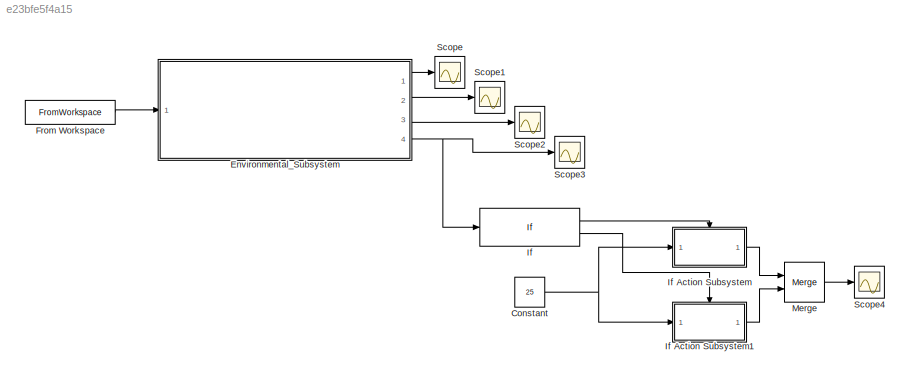
MODEL slx_e23bfe5f4a15
KIND model
CONFIG AbsTol = auto
CONFIG EnableMultiTasking = off
CONFIG FixedStep = auto
CONFIG InitFcn = Distance_travelled = [0: 1 :12000;0: 1 :12000;]';
CONFIG MaxStep = 0.01
CONFIG MinStep = auto
CONFIG RelTol = 1e-3
CONFIG SampleTimeConstraint = Unconstrained
CONFIG Solver = VariableStepAuto
CONFIG SolverName = VariableStepAuto
CONFIG StartTime = 0.0
CONFIG StopTime = 11800
BLOCK [Constant] Constant
  Value = 25
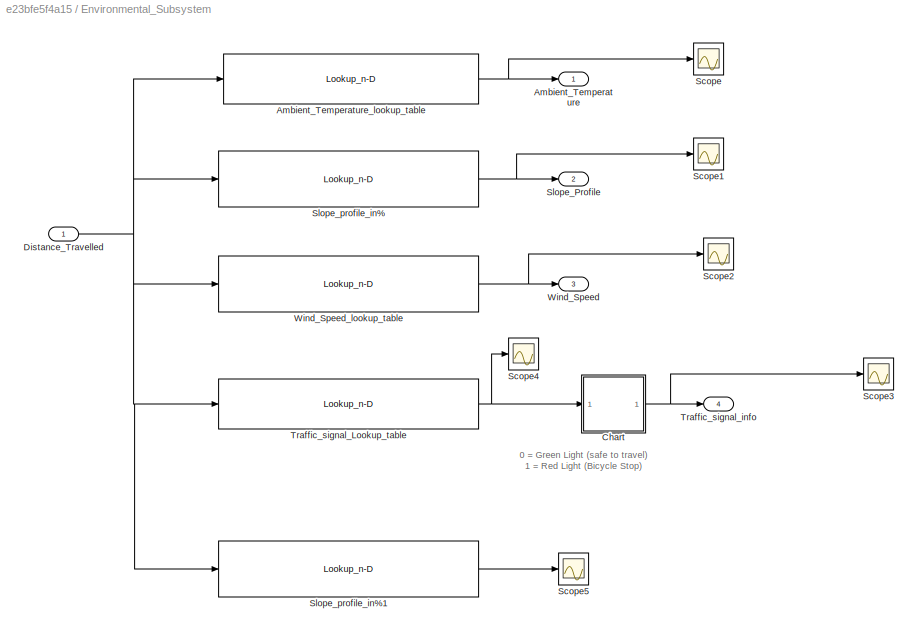
BLOCK [SubSystem] Environmental_Subsystem
  Ports = [1, 4]
  RequestExecContextInheritance = off
BLOCK [Outport] Environmental_Subsystem/Ambient_Temperature
  IconDisplay = Port number
  VectorParamsAs1DForOutWhenUnconnected = off
BLOCK [Lookup_n-D] Environmental_Subsystem/Ambient_Temperature_lookup_table
  BreakpointsForDimension1 = [0 6000 12000]
  InternalRulePriority = Speed
  NumberOfTableDimensions = 1
  Ports = [1, 1]
  RndMeth = Simplest
  Table = [25 24 25]
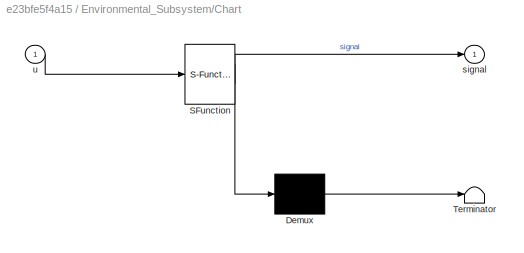
BLOCK [SubSystem] Environmental_Subsystem/Chart
  BlockKeywords = __PRM__SERIALIZED__DATA__:Stateflow Chart,Stateflow Diagram
  ErrorFcn = Stateflow.Translate.translate
  PermitHierarchicalResolution = ExplicitOnly
  Ports = [1, 1]
  RequestExecContextInheritance = off
  SFBlockType = Chart
  TreatAsAtomicUnit = on
BLOCK [Demux] Environmental_Subsystem/Chart/ Demux 
  Outputs = 1
  Ports = [1, 1]
BLOCK [S-Function] Environmental_Subsystem/Chart/ SFunction 
  EnableBusSupport = on
  FunctionName = sf_sfun
  PortCounts = [1 2]
  Ports = [1, 2]
  SFcnIsStateOwnerBlock = off
  SFunctionDeploymentMode = off
  Tag = Stateflow S-Function 3
BLOCK [Terminator] Environmental_Subsystem/Chart/ Terminator 
BLOCK [Outport] Environmental_Subsystem/Chart/signal
  IconDisplay = Port number
BLOCK [Inport] Environmental_Subsystem/Chart/u
  IconDisplay = Port number
BLOCK [Inport] Environmental_Subsystem/Distance_Travelled
  IconDisplay = Port number
BLOCK [Scope] Environmental_Subsystem/Scope
  Floating = off
  NumInputPorts = 1
  Ports = [1]
  ScopeSpecificationString = Simulink.scopes.TimeScopeBlockCfg('CurrentConfiguration', extmgr.ConfigurationSet(extmgr.Configuration('Core','General UI',true),extmgr.Configuration('Core','Source UI',true),extmgr.Configuration('Sources','WiredSimulink',true),extmgr.Configuration('Visuals','Time Domain',true,'SerializedDisplays',{struct('MinYLimReal','23.875','MaxYLimReal','25.125','YLabelReal','','MinYLimMag','23.875','MaxYLimM...<+1381ch>
BLOCK [Scope] Environmental_Subsystem/Scope1
  Floating = off
  NumInputPorts = 1
  Ports = [1]
  ScopeSpecificationString = Simulink.scopes.TimeScopeBlockCfg('CurrentConfiguration', extmgr.ConfigurationSet(extmgr.Configuration('Core','General UI',true),extmgr.Configuration('Core','Source UI',true),extmgr.Configuration('Sources','WiredSimulink',true,'DataLoggingVariableName','ScopeData1'),extmgr.Configuration('Visuals','Time Domain',true,'SerializedDisplays',{struct('MinYLimReal','-1.22917','MaxYLimReal','1.0625','YLabe...<+1401ch>
BLOCK [Scope] Environmental_Subsystem/Scope2
  Floating = off
  NumInputPorts = 1
  Ports = [1]
  ScopeSpecificationString = Simulink.scopes.TimeScopeBlockCfg('CurrentConfiguration', extmgr.ConfigurationSet(extmgr.Configuration('Core','General UI',true),extmgr.Configuration('Core','Source UI',true),extmgr.Configuration('Sources','WiredSimulink',true,'DataLoggingVariableName','ScopeData2'),extmgr.Configuration('Visuals','Time Domain',true,'SerializedDisplays',{struct('MinYLimReal','-21.25','MaxYLimReal','21.25','YLabelRe...<+1383ch>
BLOCK [Scope] Environmental_Subsystem/Scope3
  Floating = off
  NumInputPorts = 1
  Ports = [1]
  ScopeSpecificationString = Simulink.scopes.TimeScopeBlockCfg('CurrentConfiguration', extmgr.ConfigurationSet(extmgr.Configuration('Core','General UI',true,'FigureColor',[1 1 1]),extmgr.Configuration('Core','Source UI',true),extmgr.Configuration('Sources','WiredSimulink',true,'DataLoggingVariableName','ScopeData2'),extmgr.Configuration('Visuals','Time Domain',true,'SerializedDisplays',{struct('MinYLimReal','-0.125','MaxYLimR...<+1730ch>
BLOCK [Scope] Environmental_Subsystem/Scope4
  Floating = off
  NumInputPorts = 1
  Ports = [1]
  ScopeSpecificationString = Simulink.scopes.TimeScopeBlockCfg('CurrentConfiguration', extmgr.ConfigurationSet(extmgr.Configuration('Core','General UI',true),extmgr.Configuration('Core','Source UI',true),extmgr.Configuration('Sources','WiredSimulink',true,'DataLoggingVariableName','ScopeData1'),extmgr.Configuration('Visuals','Time Domain',true,'SerializedDisplays',{struct('MinYLimReal','-0.125','MaxYLimReal','1.125','YLabelRe...<+1444ch>
BLOCK [Scope] Environmental_Subsystem/Scope5
  Floating = off
  NumInputPorts = 1
  Ports = [1]
  ScopeSpecificationString = Simulink.scopes.TimeScopeBlockCfg('CurrentConfiguration', extmgr.ConfigurationSet(extmgr.Configuration('Core','General UI',true),extmgr.Configuration('Core','Source UI',true),extmgr.Configuration('Sources','WiredSimulink',true,'DataLoggingVariableName','ScopeData1'),extmgr.Configuration('Visuals','Time Domain',true,'SerializedDisplays',{struct('MinYLimReal','7.5','MaxYLimReal','42.5','YLabelReal',...<+1475ch>
BLOCK [Outport] Environmental_Subsystem/Slope_Profile
  IconDisplay = Port number
  Port = 2
  VectorParamsAs1DForOutWhenUnconnected = off
BLOCK [Lookup_n-D] Environmental_Subsystem/Slope_profile_in%
  BreakpointsForDimension1 = [0000,\n0015,\n0056,\n0099,\n0108,\n0118,\n0132,\n0142,\n0160,\n0170,\n0186,\n0228,\n0293,\n0336,\n0363,\n0381,\n0391,\n0402,\n0437,\n0478,\n0538,\n0565,\n0582,\n0591,\n0611,\n0640,\n0675,\n0684,\n0699,\n0757,\n0777,\n0788,\n0820,\n0823,\n0837,\n0841,\n0863,\n0880,\n0900,\n0918,\n0948,\n0985,\n1016,\n1037,\n1051,\n1061,\n1082,\n1113,\n1134,\n1142,\n1151,\n1165,\n1176,\n1187,\n1200,\n1216,\n1234,\n1277,\n1341,\n1373,\n1401,\n1452,\n1486,\n1497,\n1507,\n1520,\n152...<+1346ch>
  InternalRulePriority = Speed
  NumberOfTableDimensions = 1
  Ports = [1, 1]
  RndMeth = Simplest
  Table = [0,\n-0.487804878,\n-0.23255814,\n0,\n-1,\n0,\n0,\n0,\n0,\n0,\n-0.714285714,\n-0.769230769,\n-0.697674419,\n-0.740740741,\n0,\n0,\n0,\n-0.285714286,\n-0.243902439,\n-0.166666667,\n-0.37037037,\n-0.588235294,\n0,\n0,\n0,\n0,\n0,\n0,\n-0.344827586,\n0,\n0,\n-0.3125,\n0,\n-0.714285714,\n0,\n0,\n0,\n0,\n0,\n0.333333333,\n0.27027027,\n0,\n0,\n0,\n-1,\n0,\n0,\n0,\n0,\n0,\n0,\n0,\n0,\n0,\n0,\n0,\n0,\n0,\n0.3125,\n0,\n0,\n0,\n0,\n0,\n0,\n0,\n0.344827586,\n0,\n0,\n0,\n0,\n0,\n...<+989ch>
BLOCK [Lookup_n-D] Environmental_Subsystem/Slope_profile_in%1
  BreakpointsForDimension1 = [0000,\n0015,\n0056,\n0099,\n0108,\n0118,\n0132,\n0142,\n0160,\n0170,\n0186,\n0228,\n0293,\n0336,\n0363,\n0381,\n0391,\n0402,\n0437,\n0478,\n0538,\n0565,\n0582,\n0591,\n0611,\n0640,\n0675,\n0684,\n0699,\n0757,\n0777,\n0788,\n0820,\n0823,\n0837,\n0841,\n0863,\n0880,\n0900,\n0918,\n0948,\n0985,\n1016,\n1037,\n1051,\n1061,\n1082,\n1113,\n1134,\n1142,\n1151,\n1165,\n1176,\n1187,\n1200,\n1216,\n1234,\n1277,\n1341,\n1373,\n1401,\n1452,\n1486,\n1497,\n1507,\n1520,\n152...<+1346ch>
  IndexSearchMethod = Linear search
  InternalRulePriority = Speed
  NumberOfTableDimensions = 1
  Ports = [1, 1]
  RndMeth = Simplest
  Table = [39,\n39,\n37,\n36,\n36,\n35,\n35,\n35,\n35,\n35,\n35,\n32,\n27,\n24,\n22,\n22,\n22,\n22,\n21,\n20,\n19,\n18,\n17,\n17,\n17,\n17,\n17,\n17,\n17,\n15,\n15,\n15,\n14,\n14,\n13,\n13,\n13,\n13,\n13,\n13,\n14,\n15,\n15,\n15,\n15,\n14,\n14,\n14,\n14,\n14,\n14,\n14,\n14,\n14,\n14,\n14,\n14,\n14,\n14,\n15,\n15,\n15,\n15,\n15,\n15,\n15,\n15,\n16,\n16,\n16,\n16,\n16,\n16,\n16,\n16,\n16,\n16,\n16,\n16,\n15,\n15,\n15,\n15,\n15,\n15,\n15,\n15,\n15,\n15,\n15,\n15,\n15,\n16,\n16,\n16,\n16,\n15,\n15,\n15,\n15,...<+721ch>
BLOCK [Lookup_n-D] Environmental_Subsystem/Traffic_signal_Lookup_table
  BreakpointsForDimension1 = [0,\n1352.604,\n1352.624,\n1352.644,\n2594.125,\n2594.145,\n2594.165,\n5283.812,\n5283.832,\n5283.852,\n7423.782,\n7423.802,\n7423.822,\n9090.133,\n9090.153,\n9090.173,\n9442.834,\n9442.854,\n9442.874,\n9911.784,\n9911.804,\n9911.824,\n10337.11,\n10337.31,\n10337.51,\n10698.74,\n10698.94,\n10699.14,\n11070.92,\n11071.12,\n11071.32,\n11082.84,\n11083.04,\n11083.24,\n11800\n]
  InternalRulePriority = Speed
  NumberOfTableDimensions = 1
  Ports = [1, 1]
  RndMeth = Simplest
  Table = [\n0,\n0,\n1,\n0,\n0,\n1,\n0,\n0,\n1,\n0,\n0,\n1,\n0,\n0,\n1,\n0,\n0,\n1,\n0,\n0,\n1,\n0,\n0,\n1,\n0,\n0,\n1,\n0,\n0,\n1,\n0,\n0,\n1,\n0,\n0]
BLOCK [Outport] Environmental_Subsystem/Traffic_signal_info
  IconDisplay = Port number
  Port = 4
  VectorParamsAs1DForOutWhenUnconnected = off
BLOCK [Outport] Environmental_Subsystem/Wind_Speed
  IconDisplay = Port number
  Port = 3
  VectorParamsAs1DForOutWhenUnconnected = off
BLOCK [Lookup_n-D] Environmental_Subsystem/Wind_Speed_lookup_table
  BreakpointsForDimension1 = [0 5999.9 6000 12000]
  InternalRulePriority = Speed
  NumberOfTableDimensions = 1
  Ports = [1, 1]
  RndMeth = Simplest
  Table = [17 17 -17 -17]
BLOCK [FromWorkspace] From Workspace
  SampleTime = 0
  VariableName = Distance_travelled
  ZeroCross = on
BLOCK [If] If
  IfExpression = u1 == 0
  Ports = [1, 2]
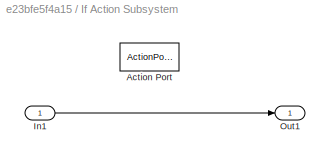
BLOCK [SubSystem] If Action Subsystem
  Ports = [1, 1, 0, 0, 0, 0, 0, 1]
  RequestExecContextInheritance = off
  TreatAsAtomicUnit = on
BLOCK [ActionPort] If Action Subsystem/Action Port
  ActionPortLabel = if(u1 == 0)
BLOCK [Inport] If Action Subsystem/In1
  IconDisplay = Port number
BLOCK [Outport] If Action Subsystem/Out1
  IconDisplay = Port number
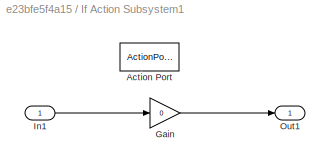
BLOCK [SubSystem] If Action Subsystem1
  Ports = [1, 1, 0, 0, 0, 0, 0, 1]
  RequestExecContextInheritance = off
  TreatAsAtomicUnit = on
BLOCK [ActionPort] If Action Subsystem1/Action Port
  ActionPortLabel = else
BLOCK [Gain] If Action Subsystem1/Gain
  Gain = 0
  OutDataTypeStr = Inherit: Inherit via internal rule
  ParamDataTypeStr = Inherit: Inherit via internal rule
  SaturateOnIntegerOverflow = off
BLOCK [Inport] If Action Subsystem1/In1
  IconDisplay = Port number
BLOCK [Outport] If Action Subsystem1/Out1
  IconDisplay = Port number
BLOCK [Merge] Merge
  Ports = [2, 1]
BLOCK [Scope] Scope
  Floating = off
  NumInputPorts = 1
  Ports = [1]
  ScopeSpecificationString = Simulink.scopes.TimeScopeBlockCfg('CurrentConfiguration', extmgr.ConfigurationSet(extmgr.Configuration('Core','General UI',true),extmgr.Configuration('Core','Source UI',true),extmgr.Configuration('Sources','WiredSimulink',true,'DataLoggingVariableName','ScopeData1'),extmgr.Configuration('Visuals','Time Domain',true,'SerializedDisplays',{struct('MinYLimReal','15.00000','MaxYLimReal','35.00000','YLa...<+1390ch>
BLOCK [Scope] Scope1
  Floating = off
  NumInputPorts = 1
  Ports = [1]
  ScopeSpecificationString = Simulink.scopes.TimeScopeBlockCfg('CurrentConfiguration', extmgr.ConfigurationSet(extmgr.Configuration('Core','General UI',true),extmgr.Configuration('Core','Source UI',true),extmgr.Configuration('Sources','WiredSimulink',true,'DataLoggingVariableName','ScopeData2'),extmgr.Configuration('Visuals','Time Domain',true,'SerializedDisplays',{struct('MinYLimReal','-1.22917','MaxYLimReal','1.0625','YLabe...<+1382ch>
BLOCK [Scope] Scope2
  Floating = off
  NumInputPorts = 1
  Ports = [1]
  ScopeSpecificationString = Simulink.scopes.TimeScopeBlockCfg('CurrentConfiguration', extmgr.ConfigurationSet(extmgr.Configuration('Core','General UI',true),extmgr.Configuration('Core','Source UI',true),extmgr.Configuration('Sources','WiredSimulink',true,'DataLoggingVariableName','ScopeData3'),extmgr.Configuration('Visuals','Time Domain',true,'SerializedDisplays',{struct('MinYLimReal','-1.00000','MaxYLimReal','1.00000','YLab...<+1384ch>
BLOCK [Scope] Scope3
  Floating = off
  NumInputPorts = 1
  Ports = [1]
  ScopeSpecificationString = Simulink.scopes.TimeScopeBlockCfg('CurrentConfiguration', extmgr.ConfigurationSet(extmgr.Configuration('Core','General UI',true),extmgr.Configuration('Core','Source UI',true),extmgr.Configuration('Sources','WiredSimulink',true,'DataLoggingVariableName','ScopeData4'),extmgr.Configuration('Visuals','Time Domain',true,'SerializedDisplays',{struct('MinYLimReal','-0.125','MaxYLimReal','1.0105','YLabelR...<+1452ch>
BLOCK [Scope] Scope4
  Floating = off
  NumInputPorts = 1
  Ports = [1]
  ScopeSpecificationString = Simulink.scopes.TimeScopeBlockCfg('CurrentConfiguration', extmgr.ConfigurationSet(extmgr.Configuration('Core','General UI',true),extmgr.Configuration('Core','Source UI',true),extmgr.Configuration('Sources','WiredSimulink',true,'DataLoggingVariableName','ScopeData5'),extmgr.Configuration('Visuals','Time Domain',true,'SerializedDisplays',{struct('MinYLimReal','-3.125','MaxYLimReal','27.98025','YLabe...<+1464ch>
ANNOTATION Environmental_Subsystem: 0 = Green Light (safe to travel) 1 = Red Light (Bicycle Stop)
NET Constant:1 -> If Action Subsystem1:1, If Action Subsystem:1
NET Environmental_Subsystem/Ambient_Temperature_lookup_table:1 -> Environmental_Subsystem/Ambient_Temperature:1, Environmental_Subsystem/Scope:1
NET Environmental_Subsystem/Chart:1 -> Environmental_Subsystem/Scope3:1, Environmental_Subsystem/Traffic_signal_info:1
NET Environmental_Subsystem/Distance_Travelled:1 -> Environmental_Subsystem/Ambient_Temperature_lookup_table:1, Environmental_Subsystem/Slope_profile_in%1:1, Environmental_Subsystem/Slope_profile_in%:1, Environmental_Subsystem/Traffic_signal_Lookup_table:1, Environmental_Subsystem/Wind_Speed_lookup_table:1
LINE Environmental_Subsystem/Slope_profile_in%1:1 -> Environmental_Subsystem/Scope5:1
NET Environmental_Subsystem/Slope_profile_in%:1 -> Environmental_Subsystem/Scope1:1, Environmental_Subsystem/Slope_Profile:1
NET Environmental_Subsystem/Traffic_signal_Lookup_table:1 -> Environmental_Subsystem/Chart:1, Environmental_Subsystem/Scope4:1
NET Environmental_Subsystem/Wind_Speed_lookup_table:1 -> Environmental_Subsystem/Scope2:1, Environmental_Subsystem/Wind_Speed:1
LINE Environmental_Subsystem:1 -> Scope:1
LINE Environmental_Subsystem:2 -> Scope1:1
LINE Environmental_Subsystem:3 -> Scope2:1
NET Environmental_Subsystem:4 -> If:1, Scope3:1
LINE From Workspace:1 -> Environmental_Subsystem:1
LINE If Action Subsystem/In1:1 -> If Action Subsystem/Out1:1
LINE If Action Subsystem1/Gain:1 -> If Action Subsystem1/Out1:1
LINE If Action Subsystem1/In1:1 -> If Action Subsystem1/Gain:1
LINE If Action Subsystem1:1 -> Merge:2
LINE If Action Subsystem:1 -> Merge:1
LINE If:1 -> If Action Subsystem:ifaction
LINE If:2 -> If Action Subsystem1:ifaction
LINE Merge:1 -> Scope4:1
note: NET lines group one-source signal fan-out (src -> all destinations, sorted); 1:1 wires keep LINE
CHART Environmental_Subsystem/Chart states=0 transitions=8
